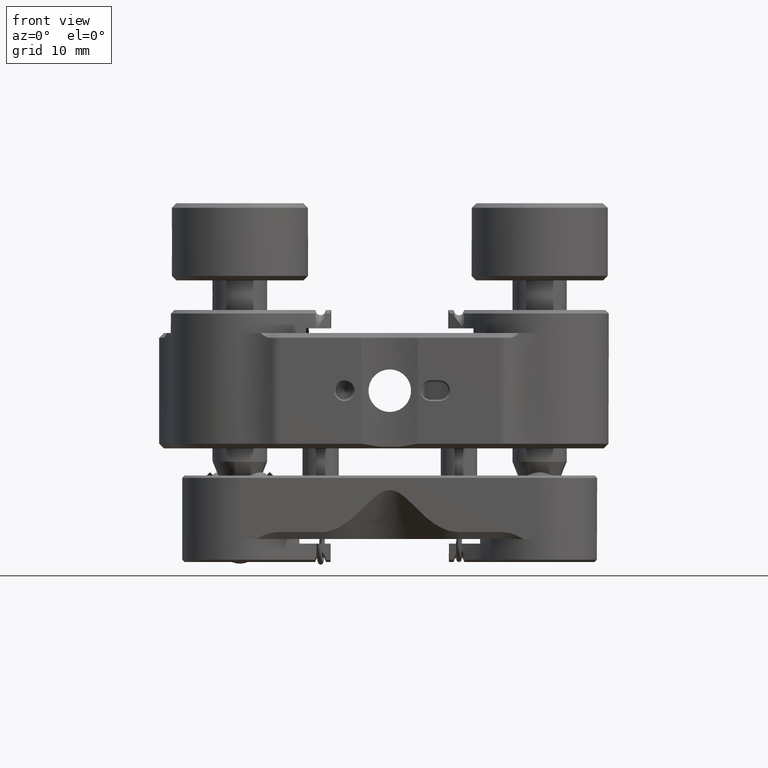
[diagram: clean part render]
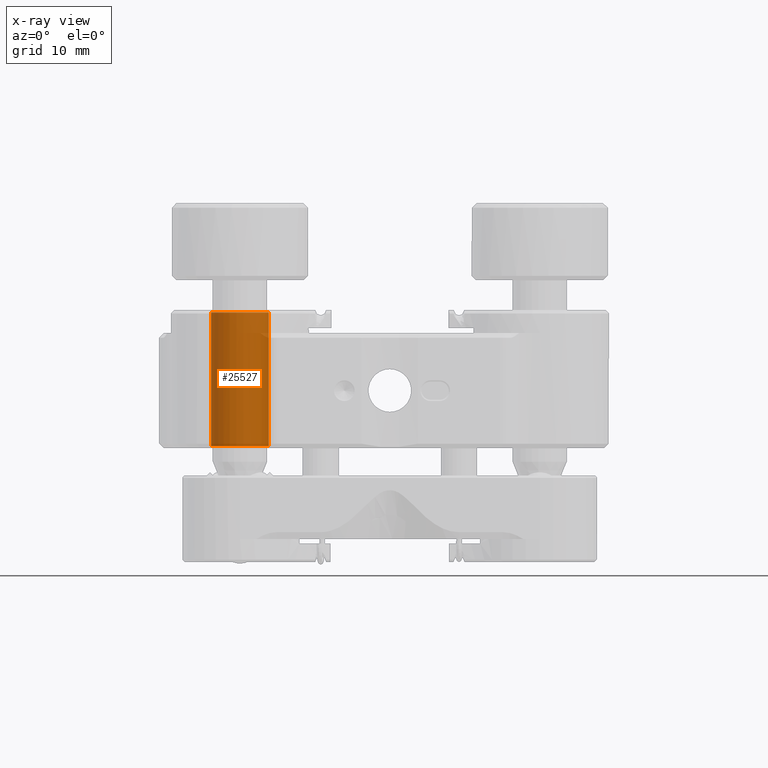
[diagram: x-ray — body ghosted, one internal face saturated and labeled with its STEP entity id]
A machine part, front view, then the same camera in x-ray: the body is ghosted and one INTERNAL B-rep face — a face not visible from any outside direction — is saturated and labeled: STEP entity #25527.
In plain terms, the highlighted cylindrical surface (bore or boss wall) has radius 3.175 mm, axis along (-0, -0, -1).
Its self-contained STEP definition (entity closure, byte-faithful):
#2374 = EDGE_LOOP ( 'NONE', ( #59285 ) ) ;
#3226 = DIRECTION ( 'NONE',  ( -0.000000000000000000, -0.000000000000000000, -1.000000000000000000 ) ) ;
#3950 = CARTESIAN_POINT ( 'NONE',  ( 8.861151733612629755, 45.13409739724924918, 40.74170909685329178 ) ) ;
#4087 = AXIS2_PLACEMENT_3D ( 'NONE', #3950, #14287, #19134 ) ;
#4593 = CYLINDRICAL_SURFACE ( 'NONE', #4087, 3.175000000000000711 ) ;
#8256 = EDGE_LOOP ( 'NONE', ( #61767 ) ) ;
#9153 = CARTESIAN_POINT ( 'NONE',  ( 5.686151733640492090, 45.13409739724924918, 25.75570909694006616 ) ) ;
#14287 = DIRECTION ( 'NONE',  ( -0.000000000000000000, -0.000000000000000000, -1.000000000000000000 ) ) ;
#19134 = DIRECTION ( 'NONE',  ( -1.000000000000000000, 0.000000000000000000, 0.000000000000000000 ) ) ;
#19170 = VERTEX_POINT ( 'NONE', #9153 ) ;
#19379 = DIRECTION ( 'NONE',  ( -1.000000000000000000, 0.000000000000000000, 0.000000000000000000 ) ) ;
#19699 = CARTESIAN_POINT ( 'NONE',  ( 8.861151733612629755, 45.13409739724924918, 25.75570909694006616 ) ) ;
#25527 = ADVANCED_FACE ( 'NONE', ( #28852, #33707 ), #4593, .F. ) ;
#26708 = EDGE_CURVE ( 'NONE', #19170, #19170, #47346, .T. ) ;
#28852 = FACE_OUTER_BOUND ( 'NONE', #2374, .T. ) ;
#33707 = FACE_OUTER_BOUND ( 'NONE', #8256, .T. ) ;
#37841 = DIRECTION ( 'NONE',  ( -1.000000000000000000, 0.000000000000000000, 0.000000000000000000 ) ) ;
#38807 = DIRECTION ( 'NONE',  ( -0.000000000000000000, -0.000000000000000000, -1.000000000000000000 ) ) ;
#41509 = CIRCLE ( 'NONE', #48756, 3.175000000000000711 ) ;
#47283 = CARTESIAN_POINT ( 'NONE',  ( 5.686151733612629045, 45.13409739724924918, 40.48770909685327268 ) ) ;
#47346 = CIRCLE ( 'NONE', #58707, 3.174999999972137665 ) ;
#48756 = AXIS2_PLACEMENT_3D ( 'NONE', #57571, #3226, #37841 ) ;
#49457 = EDGE_CURVE ( 'NONE', #61539, #61539, #41509, .T. ) ;
#57571 = CARTESIAN_POINT ( 'NONE',  ( 8.861151733612629755, 45.13409739724924918, 40.48770909685327268 ) ) ;
#58707 = AXIS2_PLACEMENT_3D ( 'NONE', #19699, #38807, #19379 ) ;
#59285 = ORIENTED_EDGE ( 'NONE', *, *, #49457, .F. ) ;
#61539 = VERTEX_POINT ( 'NONE', #47283 ) ;
#61767 = ORIENTED_EDGE ( 'NONE', *, *, #26708, .T. ) ;